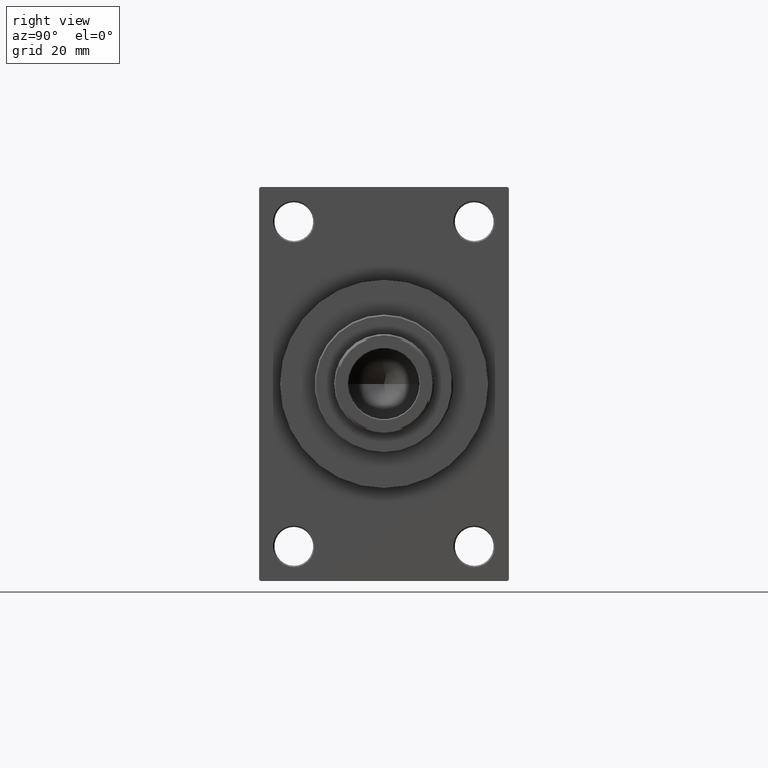
[diagram: clean part render]
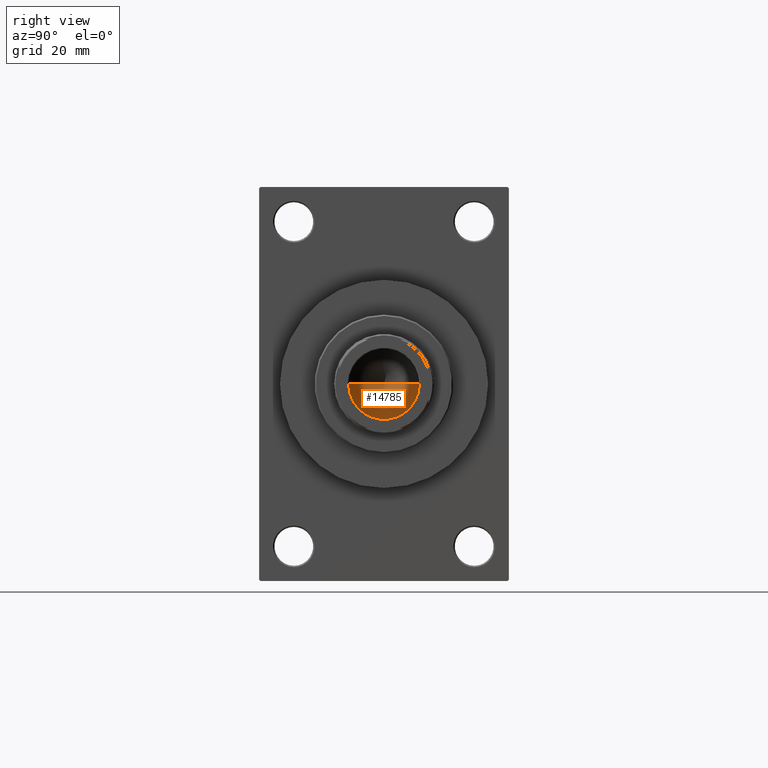
[diagram: same view with one face highlighted and labeled with its STEP entity id]
A machine part, right view. The second image highlights one B-rep face of the part: STEP entity #14785.
In plain terms, the highlighted conical surface has half-angle 59 deg.
Its self-contained STEP definition (entity closure, byte-faithful):
#1395 = DIRECTION ( 'NONE',  ( 0.8571673007021117785, 0.000000000000000000, 0.5150380749100550437 ) ) ;
#1588 = EDGE_LOOP ( 'NONE', ( #14989, #3820, #2706 ) ) ;
#1935 = EDGE_CURVE ( 'NONE', #28600, #22711, #19238, .T. ) ;
#2706 = ORIENTED_EDGE ( 'NONE', *, *, #7151, .T. ) ;
#3820 = ORIENTED_EDGE ( 'NONE', *, *, #15183, .T. ) ;
#4456 = CARTESIAN_POINT ( 'NONE',  ( -12.74999999999999112, 1.561424668912874125E-15, 105.0000000000000284 ) ) ;
#4508 = CARTESIAN_POINT ( 'NONE',  ( 12.74999999999999112, 0.000000000000000000, 105.0000000000000284 ) ) ;
#5030 = DIRECTION ( 'NONE',  ( -0.000000000000000000, -0.000000000000000000, 1.000000000000000000 ) ) ;
#7151 = EDGE_CURVE ( 'NONE', #13043, #22711, #7477, .T. ) ;
#7477 = CIRCLE ( 'NONE', #28082, 12.74999999999999112 ) ;
#13043 = VERTEX_POINT ( 'NONE', #22980 ) ;
#14785 = ADVANCED_FACE ( 'NONE', ( #29878 ), #35269, .F. ) ;
#14989 = ORIENTED_EDGE ( 'NONE', *, *, #1935, .F. ) ;
#15183 = EDGE_CURVE ( 'NONE', #28600, #13043, #26467, .T. ) ;
#16240 = DIRECTION ( 'NONE',  ( 1.000000000000000000, 0.000000000000000000, 0.000000000000000000 ) ) ;
#19238 = LINE ( 'NONE', #4456, #20280 ) ;
#20280 = VECTOR ( 'NONE', #44090, 1000.000000000000000 ) ;
#22136 = DIRECTION ( 'NONE',  ( -0.000000000000000000, -0.000000000000000000, 1.000000000000000000 ) ) ;
#22711 = VERTEX_POINT ( 'NONE', #43166 ) ;
#22980 = CARTESIAN_POINT ( 'NONE',  ( 12.74999999999999112, 0.000000000000000000, 105.0000000000000284 ) ) ;
#25388 = VECTOR ( 'NONE', #1395, 1000.000000000000000 ) ;
#26280 = CARTESIAN_POINT ( 'NONE',  ( 0.000000000000000000, 0.000000000000000000, 105.0000000000000284 ) ) ;
#26437 = CARTESIAN_POINT ( 'NONE',  ( 0.000000000000000000, 0.000000000000000000, 105.0000000000000284 ) ) ;
#26467 = LINE ( 'NONE', #4508, #25388 ) ;
#28082 = AXIS2_PLACEMENT_3D ( 'NONE', #26437, #22136, #41003 ) ;
#28600 = VERTEX_POINT ( 'NONE', #36938 ) ;
#29878 = FACE_OUTER_BOUND ( 'NONE', #1588, .T. ) ;
#35269 = CONICAL_SURFACE ( 'NONE', #42150, 12.74999999999999112, 1.029744258676653423 ) ;
#36938 = CARTESIAN_POINT ( 'NONE',  ( -1.323906893019387300E-14, 0.000000000000000000, 97.33902710739862130 ) ) ;
#41003 = DIRECTION ( 'NONE',  ( 1.000000000000000000, 0.000000000000000000, 0.000000000000000000 ) ) ;
#42150 = AXIS2_PLACEMENT_3D ( 'NONE', #26280, #5030, #16240 ) ;
#43166 = CARTESIAN_POINT ( 'NONE',  ( -12.74999999999999112, 1.561424668912874125E-15, 105.0000000000000284 ) ) ;
#44090 = DIRECTION ( 'NONE',  ( -0.8571673007021117785, 1.049727191138617956E-16, 0.5150380749100550437 ) ) ;